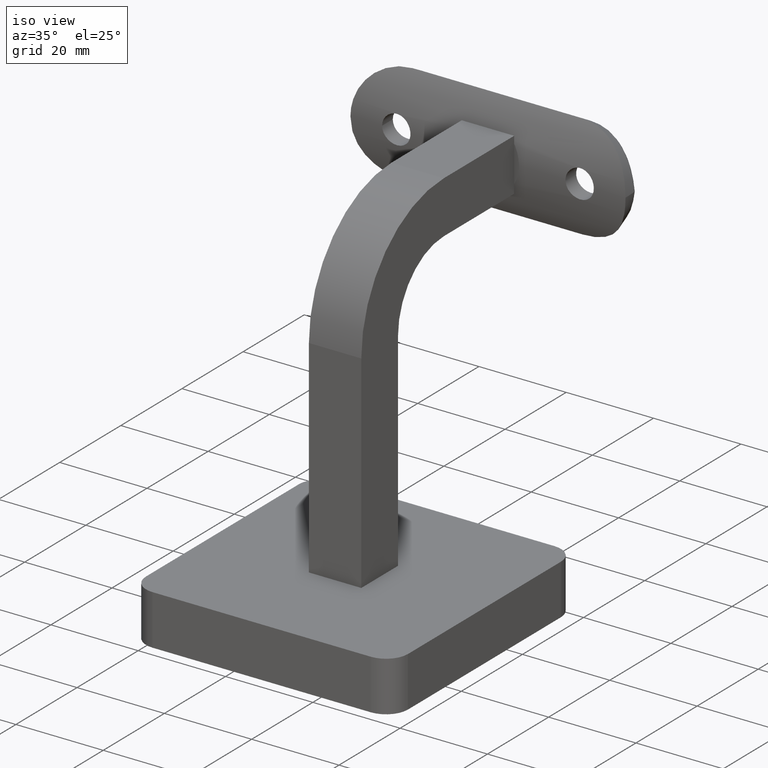
[diagram: clean part render]
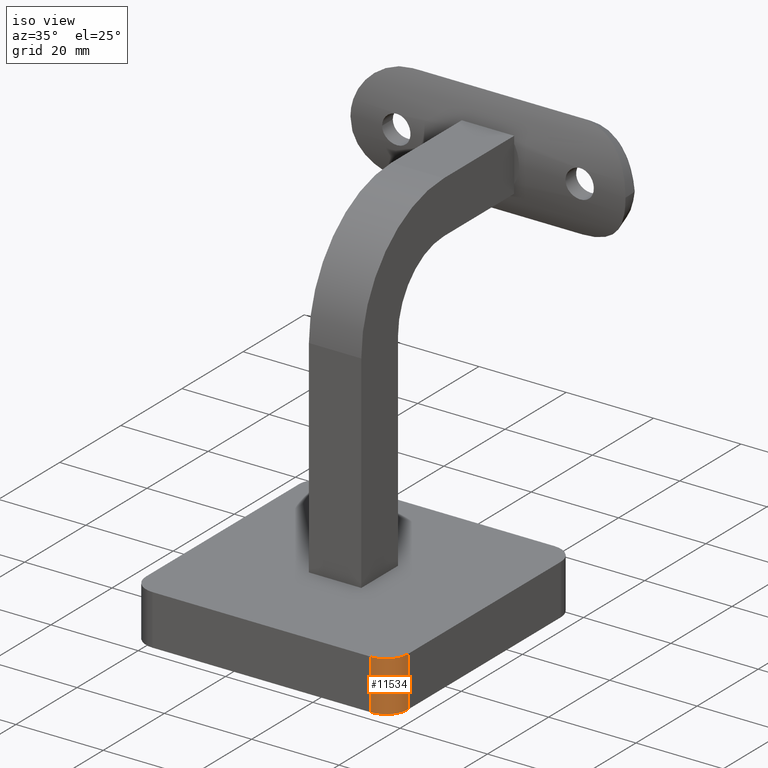
[diagram: same view with one face highlighted and labeled with its STEP entity id]
A machine part, iso view. The second image highlights one B-rep face of the part: STEP entity #11534.
In plain terms, the highlighted cylindrical surface (edge-blend (fillet) strip) has radius 5 mm, axis along (-0, -0, -1).
Its self-contained STEP definition (entity closure, byte-faithful):
#190 = VERTEX_POINT ( 'NONE', #6938 ) ;
#699 = LINE ( 'NONE', #768, #5415 ) ;
#768 = CARTESIAN_POINT ( 'NONE',  ( 60.00000000000000000, 5.000000000000035527, 11.50000000000000000 ) ) ;
#973 = EDGE_CURVE ( 'NONE', #15392, #190, #7209, .T. ) ;
#1695 = CYLINDRICAL_SURFACE ( 'NONE', #9525, 4.999999999999997335 ) ;
#1816 = ORIENTED_EDGE ( 'NONE', *, *, #8613, .T. ) ;
#3357 = ORIENTED_EDGE ( 'NONE', *, *, #7663, .T. ) ;
#3490 = DIRECTION ( 'NONE',  ( -1.000000000000000000, 0.000000000000000000, 0.000000000000000000 ) ) ;
#3788 = CARTESIAN_POINT ( 'NONE',  ( 54.99999999999996447, 8.673617379884035472E-16, 11.50000000000000000 ) ) ;
#5415 = VECTOR ( 'NONE', #12232, 1000.000000000000000 ) ;
#5847 = CARTESIAN_POINT ( 'NONE',  ( 54.99999999999996447, 8.673617379884035472E-16, 0.000000000000000000 ) ) ;
#6668 = DIRECTION ( 'NONE',  ( -0.000000000000000000, -0.000000000000000000, -1.000000000000000000 ) ) ;
#6928 = CARTESIAN_POINT ( 'NONE',  ( 54.99999999999996447, 8.673617379884035472E-16, 11.50000000000000000 ) ) ;
#6938 = CARTESIAN_POINT ( 'NONE',  ( 60.00000000000000000, 5.000000000000035527, 11.50000000000000000 ) ) ;
#7209 = CIRCLE ( 'NONE', #16790, 4.999999999999997335 ) ;
#7663 = EDGE_CURVE ( 'NONE', #18042, #12250, #12727, .T. ) ;
#7701 = LINE ( 'NONE', #6928, #10219 ) ;
#8613 = EDGE_CURVE ( 'NONE', #15392, #18042, #7701, .T. ) ;
#8730 = CARTESIAN_POINT ( 'NONE',  ( 60.00000000000000000, 5.000000000000035527, 0.000000000000000000 ) ) ;
#8951 = CARTESIAN_POINT ( 'NONE',  ( 55.00000000000000000, 5.000000000000000000, 0.000000000000000000 ) ) ;
#9460 = EDGE_LOOP ( 'NONE', ( #3357, #17593, #10979, #1816 ) ) ;
#9525 = AXIS2_PLACEMENT_3D ( 'NONE', #14734, #13015, #3490 ) ;
#10219 = VECTOR ( 'NONE', #6668, 1000.000000000000000 ) ;
#10979 = ORIENTED_EDGE ( 'NONE', *, *, #973, .F. ) ;
#11089 = EDGE_CURVE ( 'NONE', #190, #12250, #699, .T. ) ;
#11534 = ADVANCED_FACE ( 'NONE', ( #12373 ), #1695, .T. ) ;
#12232 = DIRECTION ( 'NONE',  ( -0.000000000000000000, -0.000000000000000000, -1.000000000000000000 ) ) ;
#12250 = VERTEX_POINT ( 'NONE', #8730 ) ;
#12373 = FACE_OUTER_BOUND ( 'NONE', #9460, .T. ) ;
#12727 = CIRCLE ( 'NONE', #16583, 4.999999999999997335 ) ;
#13015 = DIRECTION ( 'NONE',  ( -0.000000000000000000, -0.000000000000000000, -1.000000000000000000 ) ) ;
#13333 = CARTESIAN_POINT ( 'NONE',  ( 55.00000000000000000, 5.000000000000000000, 11.50000000000000000 ) ) ;
#14734 = CARTESIAN_POINT ( 'NONE',  ( 55.00000000000000000, 5.000000000000000000, 11.50000000000000000 ) ) ;
#14778 = DIRECTION ( 'NONE',  ( 0.000000000000000000, 0.000000000000000000, 1.000000000000000000 ) ) ;
#15392 = VERTEX_POINT ( 'NONE', #3788 ) ;
#16286 = DIRECTION ( 'NONE',  ( -1.000000000000000000, 0.000000000000000000, 0.000000000000000000 ) ) ;
#16583 = AXIS2_PLACEMENT_3D ( 'NONE', #8951, #16818, #19905 ) ;
#16790 = AXIS2_PLACEMENT_3D ( 'NONE', #13333, #14778, #16286 ) ;
#16818 = DIRECTION ( 'NONE',  ( 0.000000000000000000, 0.000000000000000000, 1.000000000000000000 ) ) ;
#17593 = ORIENTED_EDGE ( 'NONE', *, *, #11089, .F. ) ;
#18042 = VERTEX_POINT ( 'NONE', #5847 ) ;
#19905 = DIRECTION ( 'NONE',  ( -1.000000000000000000, 0.000000000000000000, 0.000000000000000000 ) ) ;